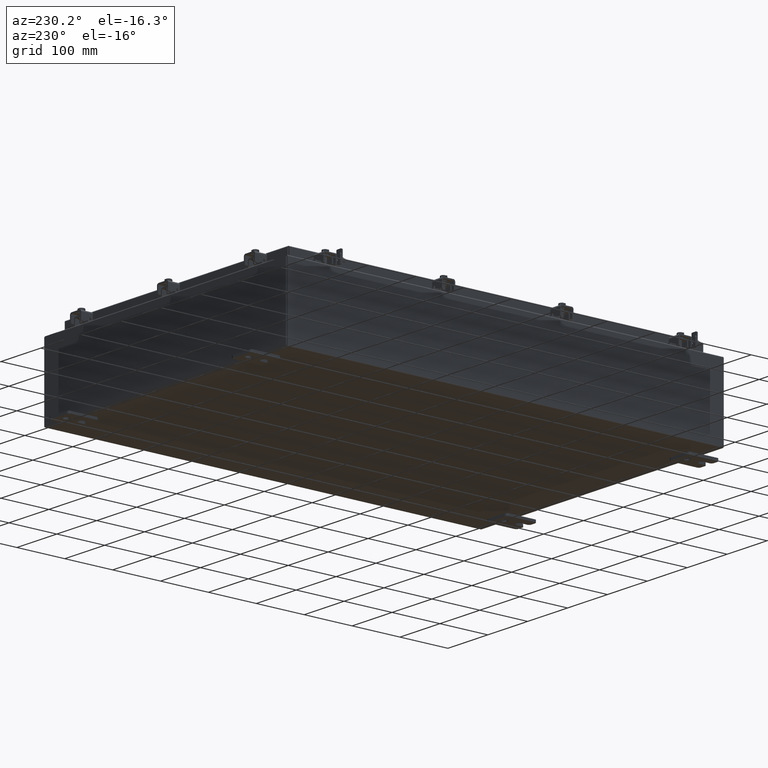
[diagram: clean part render]
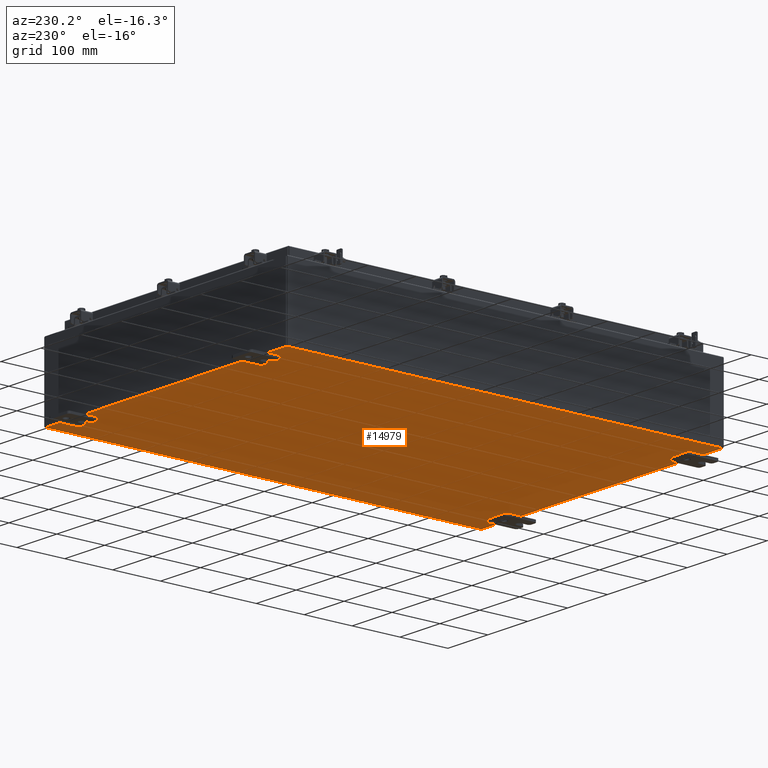
[diagram: same view with one face highlighted and labeled with its STEP entity id]
A machine part, auxiliary view. The second image highlights one B-rep face of the part: STEP entity #14979.
In plain terms, the highlighted planar face has unit normal (0, 0, -1).
Its self-contained STEP definition (entity closure, byte-faithful):
#312 = ORIENTED_EDGE ( 'NONE', *, *, #711, .T. ) ;
#349 = VERTEX_POINT ( 'NONE', #15045 ) ;
#711 = EDGE_CURVE ( 'NONE', #20289, #3781, #14648, .T. ) ;
#2141 = VECTOR ( 'NONE', #4977, 39.37007874015748100 ) ;
#2698 = LINE ( 'NONE', #15774, #2141 ) ;
#3781 = VERTEX_POINT ( 'NONE', #19800 ) ;
#4884 = PLANE ( 'NONE',  #8128 ) ;
#4977 = DIRECTION ( 'NONE',  ( -1.000000000000000000, -0.0000000000000000000, -0.0000000000000000000 ) ) ;
#6720 = VERTEX_POINT ( 'NONE', #22039 ) ;
#8128 = AXIS2_PLACEMENT_3D ( 'NONE', #19308, #21089, #10313 ) ;
#9715 = CARTESIAN_POINT ( 'NONE',  ( -11.91230000000000000, -17.92530000000000400, -0.07469999999999994700 ) ) ;
#9919 = ORIENTED_EDGE ( 'NONE', *, *, #10773, .F. ) ;
#10313 = DIRECTION ( 'NONE',  ( -1.000000000000000000, 0.0000000000000000000, -0.0000000000000000000 ) ) ;
#10657 = DIRECTION ( 'NONE',  ( -0.0000000000000000000, -1.000000000000000000, -0.0000000000000000000 ) ) ;
#10773 = EDGE_CURVE ( 'NONE', #20289, #6720, #18484, .T. ) ;
#10836 = CARTESIAN_POINT ( 'NONE',  ( -11.91230000000000000, -17.92530000000000400, -0.07469999999999994700 ) ) ;
#12661 = DIRECTION ( 'NONE',  ( 1.000000000000000000, 0.0000000000000000000, 0.0000000000000000000 ) ) ;
#14648 = LINE ( 'NONE', #9715, #18857 ) ;
#14979 = ADVANCED_FACE ( 'NONE', ( #16343 ), #4884, .T. ) ;
#15045 = CARTESIAN_POINT ( 'NONE',  ( 11.91230000000000000, 17.92529999999999600, -0.07469999999999885100 ) ) ;
#15774 = CARTESIAN_POINT ( 'NONE',  ( -12.00000000000000200, 17.92529999999999600, -0.07470000000000000300 ) ) ;
#16343 = FACE_OUTER_BOUND ( 'NONE', #22309, .T. ) ;
#17084 = VECTOR ( 'NONE', #10657, 39.37007874015748100 ) ;
#17629 = LINE ( 'NONE', #23261, #17084 ) ;
#18484 = LINE ( 'NONE', #21594, #22701 ) ;
#18686 = EDGE_CURVE ( 'NONE', #349, #6720, #17629, .T. ) ;
#18857 = VECTOR ( 'NONE', #22030, 39.37007874015748100 ) ;
#19308 = CARTESIAN_POINT ( 'NONE',  ( 0.0000000000000000000, 0.0000000000000000000, -0.07470000000000000300 ) ) ;
#19313 = EDGE_CURVE ( 'NONE', #349, #3781, #2698, .T. ) ;
#19800 = CARTESIAN_POINT ( 'NONE',  ( -11.91230000000000000, 17.92529999999999600, -0.07470000000000000300 ) ) ;
#20289 = VERTEX_POINT ( 'NONE', #10836 ) ;
#21089 = DIRECTION ( 'NONE',  ( 0.0000000000000000000, 0.0000000000000000000, -1.000000000000000000 ) ) ;
#21428 = ORIENTED_EDGE ( 'NONE', *, *, #18686, .T. ) ;
#21594 = CARTESIAN_POINT ( 'NONE',  ( -12.00000000000000200, -17.92530000000000400, -0.07470000000000000300 ) ) ;
#21705 = ORIENTED_EDGE ( 'NONE', *, *, #19313, .F. ) ;
#22030 = DIRECTION ( 'NONE',  ( -0.0000000000000000000, 1.000000000000000000, -0.0000000000000000000 ) ) ;
#22039 = CARTESIAN_POINT ( 'NONE',  ( 11.91229999999999100, -17.92530000000000400, -0.07470000000000000300 ) ) ;
#22309 = EDGE_LOOP ( 'NONE', ( #9919, #312, #21705, #21428 ) ) ;
#22701 = VECTOR ( 'NONE', #12661, 39.37007874015748100 ) ;
#23261 = CARTESIAN_POINT ( 'NONE',  ( 11.91230000000000000, 17.92529999999999600, -0.07469999999999885100 ) ) ;